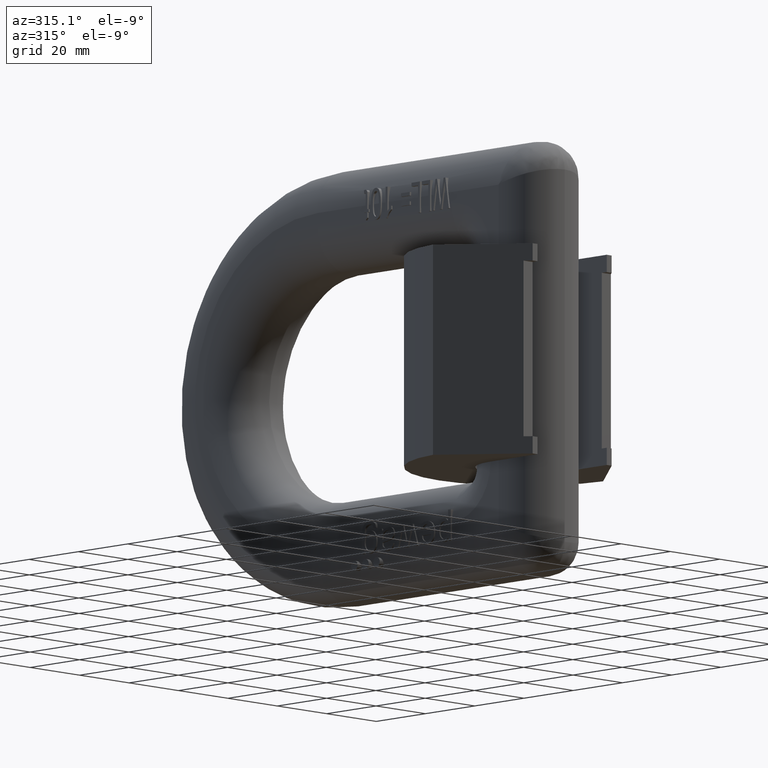
[diagram: clean part render]
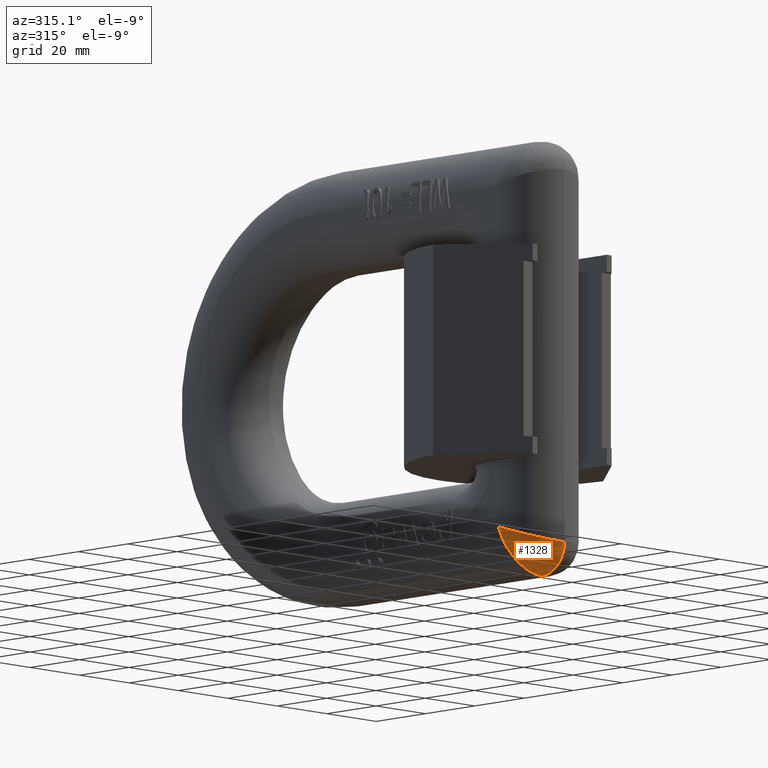
[diagram: same view with one face highlighted and labeled with its STEP entity id]
A machine part, auxiliary view. The second image highlights one B-rep face of the part: STEP entity #1328.
In plain terms, the highlighted face is a freeform B-spline surface patch.
Its self-contained STEP definition (entity closure, byte-faithful):
#183=(
BOUNDED_SURFACE()
B_SPLINE_SURFACE(3,2,((#12370,#12371,#12372),(#12373,#12374,#12375),(#12376,
#12377,#12378),(#12379,#12380,#12381),(#12382,#12383,#12384),(#12385,#12386,
#12387),(#12388,#12389,#12390),(#12391,#12392,#12393),(#12394,#12395,#12396),
(#12397,#12398,#12399),(#12400,#12401,#12402),(#12403,#12404,#12405),(#12406,
#12407,#12408),(#12409,#12410,#12411)),.UNSPECIFIED.,.F.,.F.,.F.)
B_SPLINE_SURFACE_WITH_KNOTS((4,2,2,2,2,2,4),(3,3),(0.,0.125,0.25,0.375,
0.5,0.75,1.),(0.,1.),.UNSPECIFIED.)
GEOMETRIC_REPRESENTATION_ITEM()
RATIONAL_B_SPLINE_SURFACE(((1.,0.707106781186548,1.),(1.,0.707071728049979,
1.),(1.,0.711746002965037,1.),(1.,0.72912889357828,1.),(1.,0.741833418473654,
1.),(1.,0.77239682122355,1.),(1.,0.79021800916223,1.),(1.,0.827594269081111,
1.),(1.,0.847131660804603,1.),(1.,0.903812889744107,1.),(1.,0.938655651200004,
1.),(1.,0.986729188562309,1.),(1.,1.00015858128979,1.),(1.,1.,1.)))
REPRESENTATION_ITEM('')
SURFACE()
);
#248=ELLIPSE('',#8999,14.1039001698112,13.4);
#256=ELLIPSE('',#9022,14.1039001698112,13.4);
#1328=ADVANCED_FACE('',(#1848),#183,.T.);
#1848=FACE_OUTER_BOUND('',#2298,.T.);
#2298=EDGE_LOOP('',(#3210,#3211,#3212));
#2743=CIRCLE('',#8950,9.);
#3210=ORIENTED_EDGE('',*,*,#6497,.T.);
#3211=ORIENTED_EDGE('',*,*,#6355,.F.);
#3212=ORIENTED_EDGE('',*,*,#6574,.F.);
#5458=VERTEX_POINT('',#11156);
#5469=VERTEX_POINT('',#11185);
#5477=VERTEX_POINT('',#11208);
#6355=EDGE_CURVE('',#5458,#5469,#2743,.T.);
#6497=EDGE_CURVE('',#5477,#5469,#248,.T.);
#6574=EDGE_CURVE('',#5477,#5458,#256,.T.);
#8950=AXIS2_PLACEMENT_3D('',#11189,#9517,#9518);
#8999=AXIS2_PLACEMENT_3D('',#11788,#9684,#9685);
#9022=AXIS2_PLACEMENT_3D('',#12369,#9754,#9755);
#9517=DIRECTION('',(1.,0.,0.));
#9518=DIRECTION('',(0.,0.,-0.999999999999999));
#9684=DIRECTION('',(0.,-0.950091807135884,0.311970444134171));
#9685=DIRECTION('',(0.,-0.31197044413417,-0.950091807135883));
#9754=DIRECTION('',(0.,-0.311970444134171,0.950091807135883));
#9755=DIRECTION('',(0.,-0.950091807135883,-0.311970444134171));
#11156=CARTESIAN_POINT('',(-0.0999999999999994,3.00000000000001,-54.));
#11185=CARTESIAN_POINT('',(-0.0999999999999994,12.,-63.));
#11189=CARTESIAN_POINT('',(-0.0999999999999994,12.,-54.));
#11208=CARTESIAN_POINT('',(-13.5,16.4,-49.6));
#11788=CARTESIAN_POINT('',(-0.0999999999999994,16.4,-49.6));
#12369=CARTESIAN_POINT('',(-0.0999999999999994,16.4,-49.6));
#12370=CARTESIAN_POINT('',(-0.0999999999999994,3.00000000000001,-54.));
#12371=CARTESIAN_POINT('',(-0.0999999999999994,3.00000000000001,-63.));
#12372=CARTESIAN_POINT('',(-0.0999999999999994,12.,-63.));
#12373=CARTESIAN_POINT('',(-0.9770378925965,3.00000000000001,-53.999999999999));
#12374=CARTESIAN_POINT('',(-1.5683085586166,3.00000000007806,-62.9999999999239));
#12375=CARTESIAN_POINT('',(-0.977037892596553,12.0000000000005,-63.));
#12376=CARTESIAN_POINT('',(-1.85403421914359,3.08637757900332,-53.971637212865));
#12377=CARTESIAN_POINT('',(-3.01130662907735,3.20451728572923,-62.7954827142718));
#12378=CARTESIAN_POINT('',(-1.85403421914352,12.0283627871355,-62.9136224209967));
#12379=CARTESIAN_POINT('',(-3.57438641088863,3.42857690619011,-53.8592732546834));
#12380=CARTESIAN_POINT('',(-5.63952676485926,3.9487434635126,-62.0512565364864));
#12381=CARTESIAN_POINT('',(-3.57438641088871,12.1407267453161,-62.5714230938099));
#12382=CARTESIAN_POINT('',(-4.41768982813762,3.68439020101689,-53.7752748593676));
#12383=CARTESIAN_POINT('',(-6.79926295037547,4.47019547901199,-61.5298045209858));
#12384=CARTESIAN_POINT('',(-4.41768982813758,12.2247251406324,-62.3156097989831));
#12385=CARTESIAN_POINT('',(-6.03822615924675,4.35563832768063,-53.5548650267317));
#12386=CARTESIAN_POINT('',(-8.74584716727694,5.66990567390905,-60.330094326093));
#12387=CARTESIAN_POINT('',(-6.03822615924679,12.4451349732683,-61.6443616723194));
#12388=CARTESIAN_POINT('',(-6.81541903842039,4.77105657628986,-53.4184590346508));
#12389=CARTESIAN_POINT('',(-9.536236360805,6.33306329298509,-59.6669367070124));
#12390=CARTESIAN_POINT('',(-6.81541903842092,12.5815409653489,-61.2289434237098));
#12391=CARTESIAN_POINT('',(-8.27386320650495,5.74555781400194,-53.0984735536115));
#12392=CARTESIAN_POINT('',(-10.8066632370516,7.68234503797911,-58.3176549620232));
#12393=CARTESIAN_POINT('',(-8.27386320650442,12.9015264463888,-60.2544421859984));
#12394=CARTESIAN_POINT('',(-8.95507846134089,6.30461672554142,-52.9149019707169));
#12395=CARTESIAN_POINT('',(-11.2991285231604,8.36479346516054,-57.6352065348382));
#12396=CARTESIAN_POINT('',(-8.95507846134204,13.0850980292822,-59.6953832744574));
#12397=CARTESIAN_POINT('',(-10.8155356810174,8.16507394521789,-52.3040055702286));
#12398=CARTESIAN_POINT('',(-12.4415490883439,10.3232286433415,-55.6767713566608));
#12399=CARTESIAN_POINT('',(-10.8155356810151,13.6959944297733,-57.8349260547844));
#12400=CARTESIAN_POINT('',(-11.8087376070653,9.65150567055806,-51.8159235111621));
#12401=CARTESIAN_POINT('',(-12.8714627537459,11.6149069293039,-54.3850930707031));
#12402=CARTESIAN_POINT('',(-11.8087376070631,14.18407648884,-56.3484943294472));
#12403=CARTESIAN_POINT('',(-13.1512338642372,12.8925783420575,-50.7516906936507));
#12404=CARTESIAN_POINT('',(-13.3894741391258,14.0406440549288,-51.9593559450645));
#12405=CARTESIAN_POINT('',(-13.1512338642393,15.2483093063473,-53.1074216579372));
#12406=CARTESIAN_POINT('',(-13.5,14.6456278558954,-50.1760624950737));
#12407=CARTESIAN_POINT('',(-13.4999999999993,15.2351194313822,-50.7648805686079));
#12408=CARTESIAN_POINT('',(-13.5,15.8239375049156,-51.3543721441045));
#12409=CARTESIAN_POINT('',(-13.5,16.4,-49.6));
#12410=CARTESIAN_POINT('',(-13.5,16.4,-49.6));
#12411=CARTESIAN_POINT('',(-13.5,16.4,-49.6));